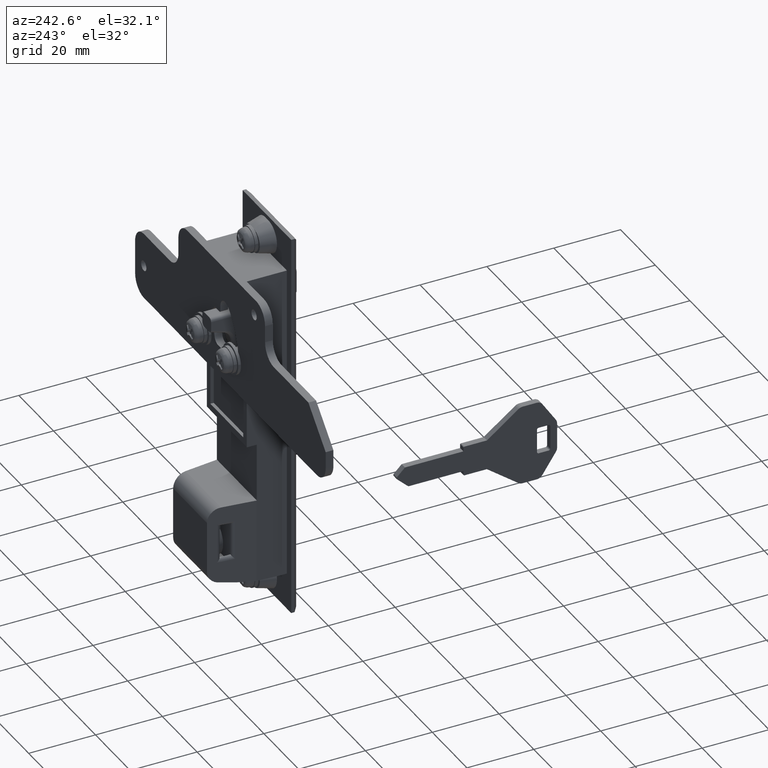
[diagram: clean part render]
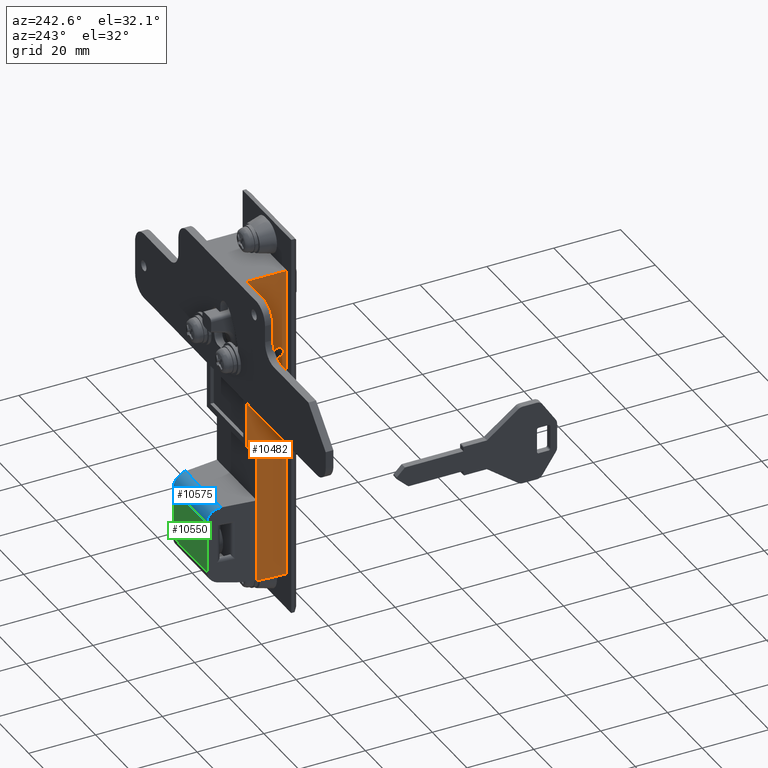
[diagram: same view with three faces highlighted in distinct colors, each labeled with its STEP entity id]
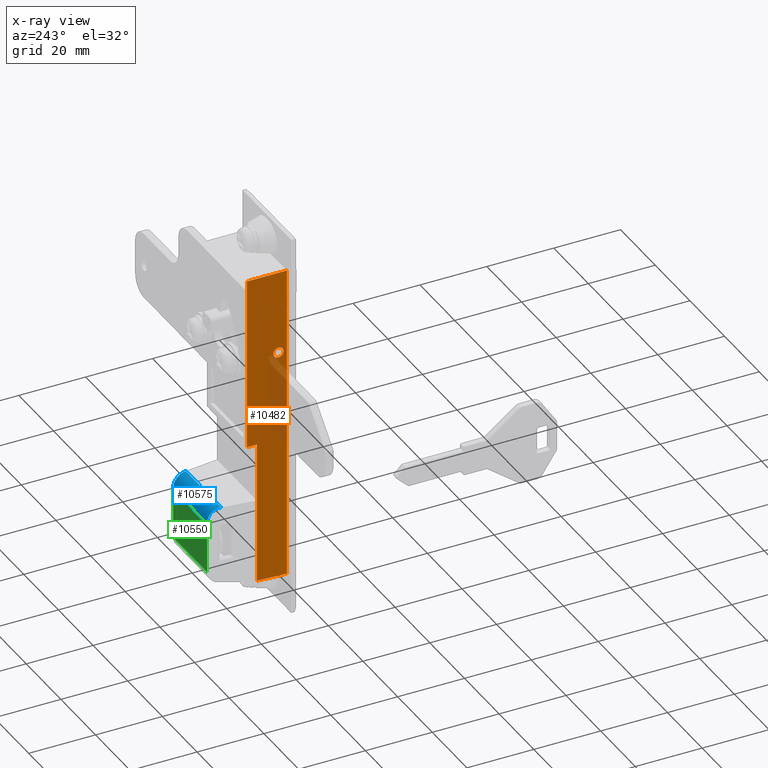
[diagram: x-ray of the same camera — body ghosted, the three highlighted faces saturated]
A machine part, auxiliary view with three faces highlighted in distinct colors.
The next image is the same camera in x-ray (body ghosted, the three faces saturated) — at least one of them is partly hidden behind the body in this view.
Their STEP definitions:

[orange] entity #10482 — the highlighted face is a freeform B-spline surface patch.
#6258=CARTESIAN_POINT('',(-10.997202197611839,11.500000000000000,0.091572809646799));
#6259=VERTEX_POINT('',#6258);
#6265=CARTESIAN_POINT('',(-9.500000000000108,11.500000000000000,1.500000000000000));
#6266=VERTEX_POINT('',#6265);
#6267=CARTESIAN_POINT('',(-9.500000000000108,11.500000000000000,1.500000000000000));
#6268=CARTESIAN_POINT('',(-10.911059099708044,11.499999999999996,1.500000000000001));
#6269=CARTESIAN_POINT('',(-10.997202197611834,11.500000000000005,0.091572809646799));
#6277=(BOUNDED_CURVE()B_SPLINE_CURVE(2,(#6267,#6268,#6269),.UNSPECIFIED.,.F.,.U.)B_SPLINE_CURVE_WITH_KNOTS((3,3),(0.500000000000000,0.739332962162560),.UNSPECIFIED.)CURVE()GEOMETRIC_REPRESENTATION_ITEM()RATIONAL_B_SPLINE_CURVE((1.0,0.719603993376199,0.976072041503014))REPRESENTATION_ITEM(''));
#6278=EDGE_CURVE('',#6266,#6259,#6277,.T.);
#6280=CARTESIAN_POINT('',(-8.010485710572938,11.500000000000000,-0.177051352980631));
#6281=VERTEX_POINT('',#6280);
#6282=CARTESIAN_POINT('',(-8.010485710572938,11.499999999999996,-0.177051352980631));
#6283=CARTESIAN_POINT('',(-8.000000000000110,11.500000000000004,-0.088836180483883));
#6284=CARTESIAN_POINT('',(-8.000000000000110,11.500000000000000,0.0));
#6285=CARTESIAN_POINT('',(-8.000000000000110,11.500000000000000,1.500000000000000));
#6286=CARTESIAN_POINT('',(-9.500000000000108,11.500000000000000,1.500000000000000));
#6294=(BOUNDED_CURVE()B_SPLINE_CURVE(2,(#6282,#6283,#6284,#6285,#6286),.UNSPECIFIED.,.F.,.U.)B_SPLINE_CURVE_WITH_KNOTS((3,2,3),(0.229562473289743,0.250000000000000,0.500000000000000),.UNSPECIFIED.)CURVE()GEOMETRIC_REPRESENTATION_ITEM()RATIONAL_B_SPLINE_CURVE((0.956026753745110,0.976055948068988,1.0,0.707106781186548,1.0))REPRESENTATION_ITEM(''));
#6295=EDGE_CURVE('',#6281,#6266,#6294,.T.);
#6339=CARTESIAN_POINT('',(-9.500000000000108,11.500000000000000,-1.500000000000000));
#6340=VERTEX_POINT('',#6339);
#6341=CARTESIAN_POINT('',(-9.500000000000108,11.500000000000000,-1.500000000000000));
#6342=CARTESIAN_POINT('',(-8.167738212866388,11.499999999999998,-1.500000000000000));
#6343=CARTESIAN_POINT('',(-8.010485710572938,11.499999999999998,-0.177051352980631));
#6351=(BOUNDED_CURVE()B_SPLINE_CURVE(2,(#6341,#6342,#6343),.UNSPECIFIED.,.F.,.U.)B_SPLINE_CURVE_WITH_KNOTS((3,3),(0.0,0.229562473289743),.UNSPECIFIED.)CURVE()GEOMETRIC_REPRESENTATION_ITEM()RATIONAL_B_SPLINE_CURVE((1.0,0.731050833117560,0.956026753745110))REPRESENTATION_ITEM(''));
#6352=EDGE_CURVE('',#6340,#6281,#6351,.T.);
#6354=CARTESIAN_POINT('',(-10.997202197611838,11.499999999999996,0.091572809646799));
#6355=CARTESIAN_POINT('',(-11.000000000000112,11.500000000000005,0.045829145293363));
#6356=CARTESIAN_POINT('',(-11.000000000000110,11.500000000000000,0.0));
#6357=CARTESIAN_POINT('',(-11.000000000000108,11.500000000000000,-1.500000000000000));
#6358=CARTESIAN_POINT('',(-9.500000000000108,11.500000000000000,-1.500000000000000));
#6366=(BOUNDED_CURVE()B_SPLINE_CURVE(2,(#6354,#6355,#6356,#6357,#6358),.UNSPECIFIED.,.F.,.U.)B_SPLINE_CURVE_WITH_KNOTS((3,2,3),(0.739332962162561,0.750000000000000,1.0),.UNSPECIFIED.)CURVE()GEOMETRIC_REPRESENTATION_ITEM()RATIONAL_B_SPLINE_CURVE((0.976072041503016,0.987502787810350,1.0,0.707106781186548,1.0))REPRESENTATION_ITEM(''));
#6367=EDGE_CURVE('',#6259,#6340,#6366,.T.);
#10050=CARTESIAN_POINT('',(-3.000009366668015,11.500000000000000,-69.697475958334195));
#10051=VERTEX_POINT('',#10050);
#10065=CARTESIAN_POINT('',(-3.000009366668705,11.500000000000000,-44.499800000000000));
#10066=VERTEX_POINT('',#10065);
#10067=CARTESIAN_POINT('',(-3.000009366668705,11.500000000000000,-44.499800000000000));
#10068=CARTESIAN_POINT('',(-3.000009366668015,11.500000000000000,-69.697475958334195));
#10069=QUASI_UNIFORM_CURVE('',1,(#10067,#10068),.UNSPECIFIED.,.F.,.U.);
#10070=EDGE_CURVE('',#10066,#10051,#10069,.T.);
#10193=CARTESIAN_POINT('',(-12.0,11.500000000000000,-69.999800000000008));
#10194=VERTEX_POINT('',#10193);
#10200=CARTESIAN_POINT('',(-9.667331885821380,11.500000000000000,-69.999800000000008));
#10201=VERTEX_POINT('',#10200);
#10202=CARTESIAN_POINT('',(-9.667331885821380,11.500000000000000,-69.999800000000008));
#10203=CARTESIAN_POINT('',(-12.0,11.500000000000000,-69.999800000000008));
#10204=QUASI_UNIFORM_CURVE('',1,(#10202,#10203),.UNSPECIFIED.,.F.,.U.);
#10205=EDGE_CURVE('',#10201,#10194,#10204,.T.);
#10232=CARTESIAN_POINT('',(-2.999999999999915,11.500000000000000,-26.999800000000000));
#10233=VERTEX_POINT('',#10232);
#10234=CARTESIAN_POINT('',(-2.999999999999915,11.500000000000000,-26.999800000000000));
#10235=CARTESIAN_POINT('',(-3.000009366668705,11.500000000000000,-44.499800000000000));
#10236=QUASI_UNIFORM_CURVE('',1,(#10234,#10235),.UNSPECIFIED.,.F.,.U.);
#10237=EDGE_CURVE('',#10233,#10066,#10236,.T.);
#10260=CARTESIAN_POINT('',(0.0,11.500000000000000,-26.999800000000000));
#10261=VERTEX_POINT('',#10260);
#10262=CARTESIAN_POINT('',(0.0,11.500000000000000,-26.999800000000000));
#10263=CARTESIAN_POINT('',(-2.999999999999915,11.500000000000000,-26.999800000000000));
#10264=QUASI_UNIFORM_CURVE('',1,(#10262,#10263),.UNSPECIFIED.,.F.,.U.);
#10265=EDGE_CURVE('',#10261,#10233,#10264,.T.);
#10289=CARTESIAN_POINT('',(0.0,11.500000000000000,25.0));
#10290=VERTEX_POINT('',#10289);
#10296=CARTESIAN_POINT('',(-12.0,11.500000000000000,25.0));
#10297=VERTEX_POINT('',#10296);
#10298=CARTESIAN_POINT('',(-12.0,11.500000000000000,25.0));
#10299=CARTESIAN_POINT('',(0.0,11.500000000000000,25.0));
#10300=QUASI_UNIFORM_CURVE('',1,(#10298,#10299),.UNSPECIFIED.,.F.,.U.);
#10301=EDGE_CURVE('',#10297,#10290,#10300,.T.);
#10441=CARTESIAN_POINT('',(-12.599399976741671,11.500000000000000,-74.745226210013669));
#10442=CARTESIAN_POINT('',(0.599400298606753,11.500000000000000,-74.745226210013669));
#10443=CARTESIAN_POINT('',(-12.599399976741671,11.500000000000000,29.745251240947258));
#10444=CARTESIAN_POINT('',(0.599400298606753,11.500000000000000,29.745251240947258));
#10445=B_SPLINE_SURFACE_WITH_KNOTS('',1,1,((#10441,#10443),(#10442,#10444)),.UNSPECIFIED.,.F.,.F.,.U.,(2,2),(2,2),(0.0,13.198800275348431),(0.0,104.490477450960900),.UNSPECIFIED.);
#10446=ORIENTED_EDGE('',*,*,#10070,.T.);
#10447=CARTESIAN_POINT('',(-9.667331885821378,11.500000000000000,-69.999799999999951));
#10448=CARTESIAN_POINT('',(-6.326456724016403,11.500000000000004,-70.007730231679517));
#10449=CARTESIAN_POINT('',(-3.000009366668016,11.500000000000000,-69.697475958334280));
#10457=(BOUNDED_CURVE()B_SPLINE_CURVE(2,(#10447,#10448,#10449),.UNSPECIFIED.,.F.,.U.)CURVE()GEOMETRIC_REPRESENTATION_ITEM()QUASI_UNIFORM_CURVE()RATIONAL_B_SPLINE_CURVE((1.0,0.998863199962394,1.0))REPRESENTATION_ITEM(''));
#10458=EDGE_CURVE('',#10201,#10051,#10457,.T.);
#10459=ORIENTED_EDGE('',*,*,#10458,.F.);
#10460=ORIENTED_EDGE('',*,*,#10205,.T.);
#10461=CARTESIAN_POINT('',(-12.0,11.500000000000000,-69.999800000000008));
#10462=CARTESIAN_POINT('',(-12.0,11.500000000000000,25.0));
#10463=QUASI_UNIFORM_CURVE('',1,(#10461,#10462),.UNSPECIFIED.,.F.,.U.);
#10464=EDGE_CURVE('',#10194,#10297,#10463,.T.);
#10465=ORIENTED_EDGE('',*,*,#10464,.T.);
#10466=ORIENTED_EDGE('',*,*,#10301,.T.);
#10467=CARTESIAN_POINT('',(0.0,11.500000000000000,25.0));
#10468=CARTESIAN_POINT('',(0.0,11.500000000000000,-26.999800000000000));
#10469=QUASI_UNIFORM_CURVE('',1,(#10467,#10468),.UNSPECIFIED.,.F.,.U.);
#10470=EDGE_CURVE('',#10290,#10261,#10469,.T.);
#10471=ORIENTED_EDGE('',*,*,#10470,.T.);
#10472=ORIENTED_EDGE('',*,*,#10265,.T.);
#10473=ORIENTED_EDGE('',*,*,#10237,.T.);
#10474=EDGE_LOOP('',(#10446,#10459,#10460,#10465,#10466,#10471,#10472,#10473));
#10475=FACE_OUTER_BOUND('',#10474,.T.);
#10476=ORIENTED_EDGE('',*,*,#6278,.T.);
#10477=ORIENTED_EDGE('',*,*,#6367,.T.);
#10478=ORIENTED_EDGE('',*,*,#6352,.T.);
#10479=ORIENTED_EDGE('',*,*,#6295,.T.);
#10480=EDGE_LOOP('',(#10476,#10477,#10478,#10479));
#10481=FACE_BOUND('',#10480,.T.);
#10482=ADVANCED_FACE('',(#10475,#10481),#10445,.F.);

[blue] entity #10575 — the highlighted face is a freeform B-spline surface patch.
#10026=CARTESIAN_POINT('',(11.0,9.750000000000000,-48.499800000000000));
#10027=VERTEX_POINT('',#10026);
#10072=CARTESIAN_POINT('',(7.0,10.249999665476359,-44.499800000000000));
#10073=VERTEX_POINT('',#10072);
#10079=CARTESIAN_POINT('',(11.0,9.749999999999973,-48.499800000000000));
#10080=CARTESIAN_POINT('',(11.000000000000004,9.749999999999973,-46.842945750507624));
#10081=CARTESIAN_POINT('',(9.828427124746190,9.896446511426996,-45.671372875253809));
#10082=CARTESIAN_POINT('',(8.656854249492380,10.042893022854019,-44.499800000000000));
#10083=CARTESIAN_POINT('',(6.999999999999996,10.249999665476340,-44.499800000000008));
#10091=(BOUNDED_CURVE()B_SPLINE_CURVE(2,(#10079,#10080,#10081,#10082,#10083),.UNSPECIFIED.,.F.,.U.)B_SPLINE_CURVE_WITH_KNOTS((3,2,3),(0.0,0.500000000000000,1.0),.UNSPECIFIED.)CURVE()GEOMETRIC_REPRESENTATION_ITEM()RATIONAL_B_SPLINE_CURVE((1.0,0.923879532511285,1.0,0.923879532511285,1.0))REPRESENTATION_ITEM(''));
#10092=EDGE_CURVE('',#10027,#10073,#10091,.T.);
#10108=CARTESIAN_POINT('',(7.0,-10.249999665476260,-44.499800000000000));
#10109=VERTEX_POINT('',#10108);
#10154=CARTESIAN_POINT('',(11.0,-9.750000000000000,-48.499800000000000));
#10155=VERTEX_POINT('',#10154);
#10161=CARTESIAN_POINT('',(7.000000000000011,-10.249999665476340,-44.499800000000008));
#10162=CARTESIAN_POINT('',(8.656854314813476,-10.042893014688890,-44.499800000000008));
#10163=CARTESIAN_POINT('',(9.828427203595728,-9.896446501570811,-45.671372954103347));
#10164=CARTESIAN_POINT('',(11.000000092377972,-9.749999988452736,-46.842945908206694));
#10165=CARTESIAN_POINT('',(11.0,-9.750000000000000,-48.499800000000000));
#10173=(BOUNDED_CURVE()B_SPLINE_CURVE(2,(#10161,#10162,#10163,#10164,#10165),.UNSPECIFIED.,.F.,.U.)B_SPLINE_CURVE_WITH_KNOTS((3,2,3),(0.0,0.500000000000000,1.0),.UNSPECIFIED.)CURVE()GEOMETRIC_REPRESENTATION_ITEM()RATIONAL_B_SPLINE_CURVE((1.0,0.923879527177147,1.0,0.923879527177147,1.0))REPRESENTATION_ITEM(''));
#10174=EDGE_CURVE('',#10109,#10155,#10173,.T.);
#10541=CARTESIAN_POINT('',(11.0,9.750000000000000,-48.499800000000000));
#10542=CARTESIAN_POINT('',(11.0,-9.750000000000000,-48.499800000000000));
#10543=QUASI_UNIFORM_CURVE('',1,(#10541,#10542),.UNSPECIFIED.,.F.,.U.);
#10544=EDGE_CURVE('',#10027,#10155,#10543,.T.);
#10551=CARTESIAN_POINT('',(6.895292206768501,10.762499648750181,-44.501170700097767));
#10552=CARTESIAN_POINT('',(6.895292206768501,-10.775312148331921,-44.501170700097767));
#10553=CARTESIAN_POINT('',(11.259030354376472,10.762499648750177,-44.386902195216031));
#10554=CARTESIAN_POINT('',(11.259030354376472,-10.775312148331924,-44.386902195216031));
#10555=CARTESIAN_POINT('',(10.992539193687470,10.762499648750181,-48.743994158139422));
#10556=CARTESIAN_POINT('',(10.992539193687470,-10.775312148331921,-48.743994158139422));
#10564=(BOUNDED_SURFACE()B_SPLINE_SURFACE(1,2,((#10551,#10553,#10555),(#10552,#10554,#10556)),.UNSPECIFIED.,.F.,.F.,.U.)B_SPLINE_SURFACE_WITH_KNOTS((2,2),(3,3),(0.0,21.537811797082099),(0.0,7.040168494269333),.UNSPECIFIED.)GEOMETRIC_REPRESENTATION_ITEM()RATIONAL_B_SPLINE_SURFACE(((1.0,0.675590207615660,1.0),(1.0,0.675590207615660,1.0)))REPRESENTATION_ITEM('')SURFACE());
#10565=ORIENTED_EDGE('',*,*,#10544,.F.);
#10566=ORIENTED_EDGE('',*,*,#10092,.T.);
#10567=CARTESIAN_POINT('',(7.0,10.249999665476359,-44.499800000000000));
#10568=CARTESIAN_POINT('',(7.0,-10.249999665476260,-44.499800000000000));
#10569=QUASI_UNIFORM_CURVE('',1,(#10567,#10568),.UNSPECIFIED.,.F.,.U.);
#10570=EDGE_CURVE('',#10073,#10109,#10569,.T.);
#10571=ORIENTED_EDGE('',*,*,#10570,.T.);
#10572=ORIENTED_EDGE('',*,*,#10174,.T.);
#10573=EDGE_LOOP('',(#10565,#10566,#10571,#10572));
#10574=FACE_OUTER_BOUND('',#10573,.T.);
#10575=ADVANCED_FACE('',(#10574),#10564,.T.);

[green] entity #10550 — the highlighted face is a freeform B-spline surface patch.
#10026=CARTESIAN_POINT('',(11.0,9.750000000000000,-48.499800000000000));
#10027=VERTEX_POINT('',#10026);
#10028=CARTESIAN_POINT('',(11.0,9.750000000000000,-63.904000000000003));
#10029=VERTEX_POINT('',#10028);
#10030=CARTESIAN_POINT('',(11.0,9.750000000000000,-48.499800000000000));
#10031=CARTESIAN_POINT('',(11.0,9.750000000000000,-63.904000000000003));
#10032=QUASI_UNIFORM_CURVE('',1,(#10030,#10031),.UNSPECIFIED.,.F.,.U.);
#10033=EDGE_CURVE('',#10027,#10029,#10032,.T.);
#10139=CARTESIAN_POINT('',(11.0,-9.750000000000000,-63.904000000000003));
#10140=VERTEX_POINT('',#10139);
#10154=CARTESIAN_POINT('',(11.0,-9.750000000000000,-48.499800000000000));
#10155=VERTEX_POINT('',#10154);
#10156=CARTESIAN_POINT('',(11.0,-9.750000000000000,-48.499800000000000));
#10157=CARTESIAN_POINT('',(11.0,-9.750000000000000,-63.904000000000003));
#10158=QUASI_UNIFORM_CURVE('',1,(#10156,#10157),.UNSPECIFIED.,.F.,.U.);
#10159=EDGE_CURVE('',#10155,#10140,#10158,.T.);
#10526=CARTESIAN_POINT('',(11.0,9.750000000000000,-63.904000000000003));
#10527=CARTESIAN_POINT('',(11.0,-9.750000000000000,-63.904000000000003));
#10528=QUASI_UNIFORM_CURVE('',1,(#10526,#10527),.UNSPECIFIED.,.F.,.U.);
#10529=EDGE_CURVE('',#10029,#10140,#10528,.T.);
#10535=CARTESIAN_POINT('',(11.0,-10.724024962205220,-64.673438927056395));
#10536=CARTESIAN_POINT('',(11.0,-10.724024962205220,-47.730362174737863));
#10537=CARTESIAN_POINT('',(11.0,10.724025485235970,-64.673438927056395));
#10538=CARTESIAN_POINT('',(11.0,10.724025485235970,-47.730362174737863));
#10539=B_SPLINE_SURFACE_WITH_KNOTS('',1,1,((#10535,#10537),(#10536,#10538)),.UNSPECIFIED.,.F.,.F.,.U.,(2,2),(2,2),(0.0,16.943076752318539),(0.0,21.448050447441190),.UNSPECIFIED.);
#10540=ORIENTED_EDGE('',*,*,#10033,.F.);
#10541=CARTESIAN_POINT('',(11.0,9.750000000000000,-48.499800000000000));
#10542=CARTESIAN_POINT('',(11.0,-9.750000000000000,-48.499800000000000));
#10543=QUASI_UNIFORM_CURVE('',1,(#10541,#10542),.UNSPECIFIED.,.F.,.U.);
#10544=EDGE_CURVE('',#10027,#10155,#10543,.T.);
#10545=ORIENTED_EDGE('',*,*,#10544,.T.);
#10546=ORIENTED_EDGE('',*,*,#10159,.T.);
#10547=ORIENTED_EDGE('',*,*,#10529,.F.);
#10548=EDGE_LOOP('',(#10540,#10545,#10546,#10547));
#10549=FACE_OUTER_BOUND('',#10548,.T.);
#10550=ADVANCED_FACE('',(#10549),#10539,.F.);